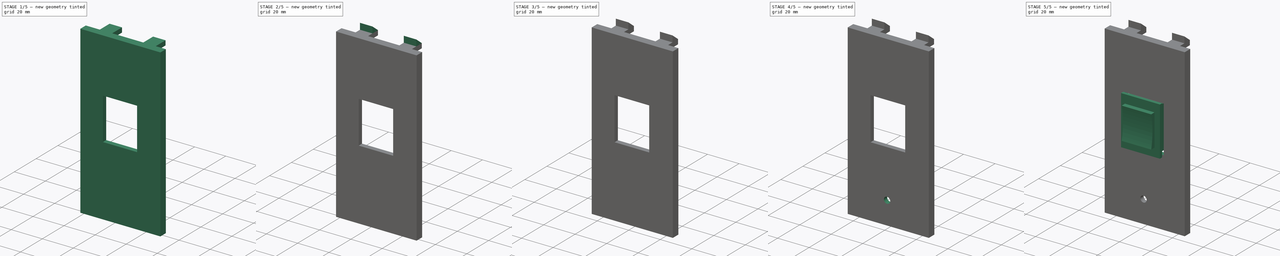
[diagram: build sequence overview — one tinted view per stage of 5, left to right]
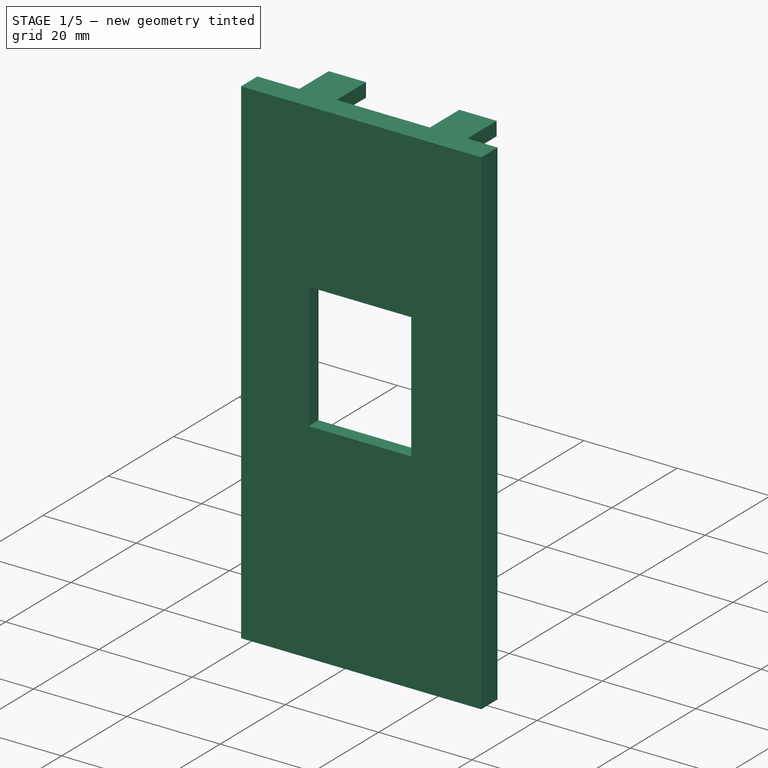
[diagram: stage 1 of 5 — iso view after this stage's code; geometry added in this stage tinted green]
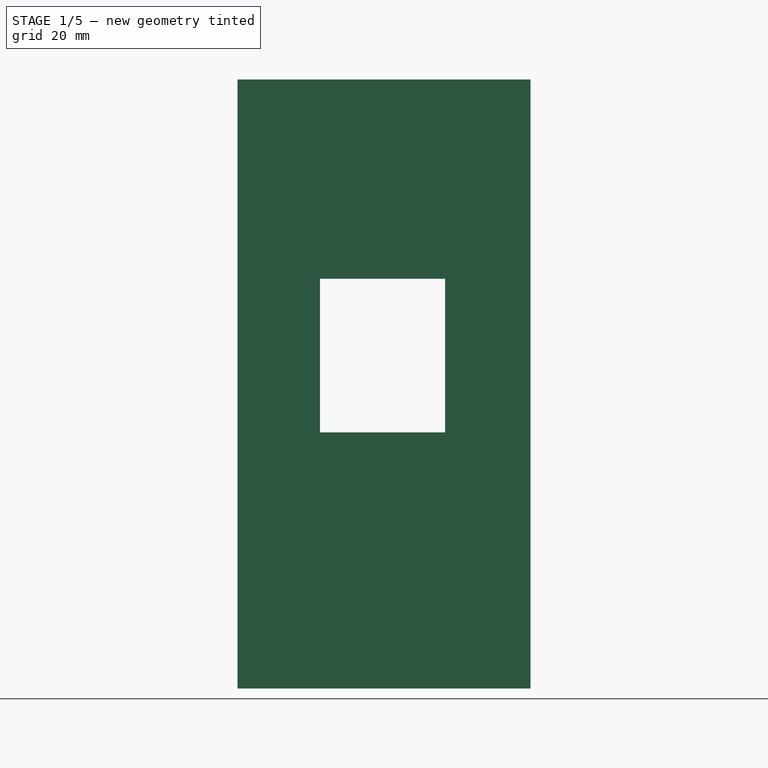
[diagram: stage 1 of 5 — front view after this stage's code; geometry added in this stage tinted green]
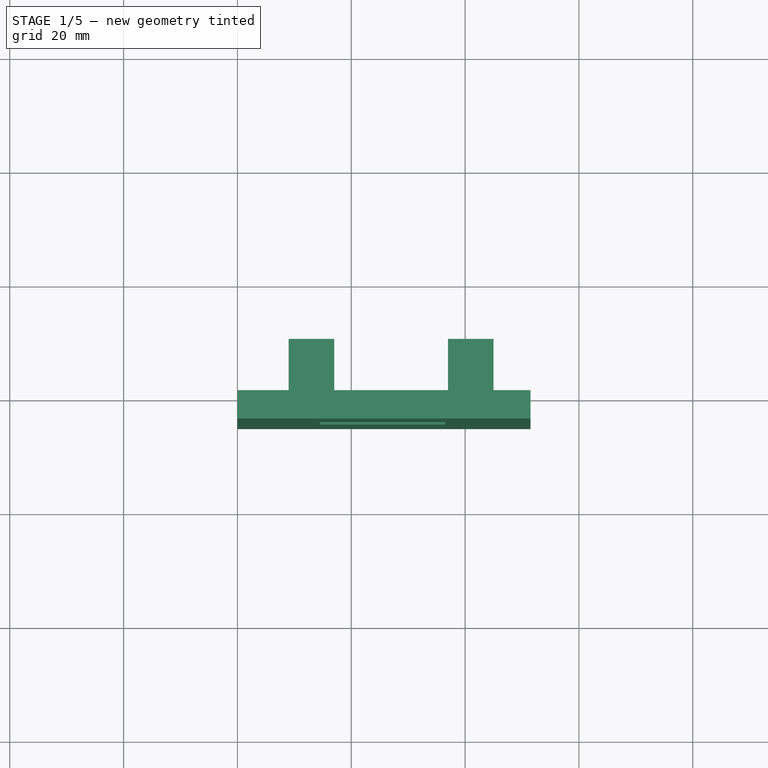
[diagram: stage 1 of 5 — top view after this stage's code; geometry added in this stage tinted green]
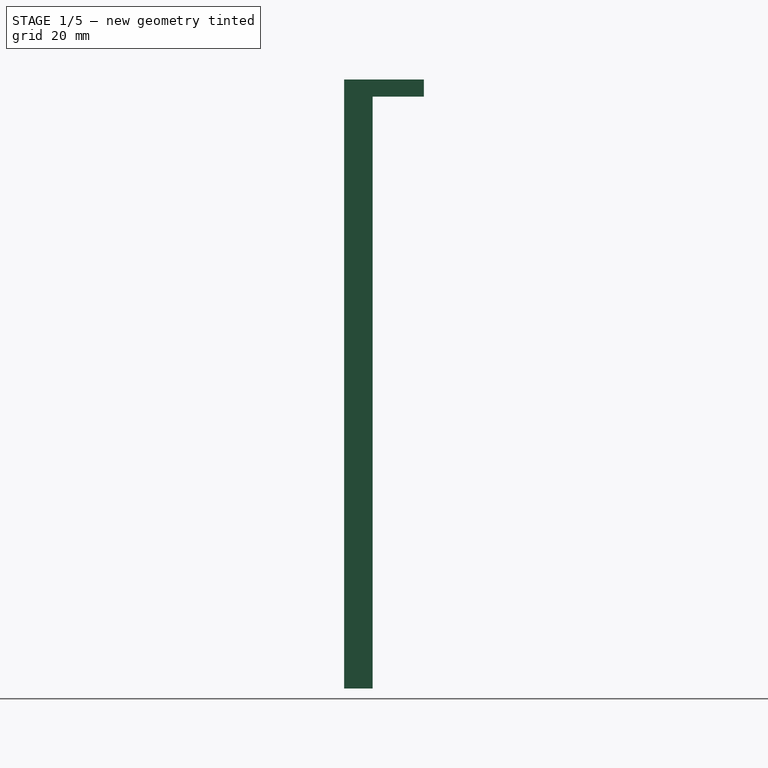
[diagram: stage 1 of 5 — right view after this stage's code; geometry added in this stage tinted green]
FCSTD DOCUMENT  (FreeCAD 0.14R2935 (Git))
Label: cubre-modulos
License: CC-BY 3.0
LicenseURL: http://creativecommons.org/licenses/by/3.0/
objects: Sketcher::SketchObject×12, PartDesign::Pad×10, PartDesign::Pocket×3, Part::Chamfer×1, Part::FeaturePython×1
note: 40 computed .brp shape members not serialized (recipe doc carries the construction recipe); baked Part::Feature solids carry a one-line shape summary decoded from their .brp

FEATURE [Sketcher::SketchObject] Sketch
  Placement = pos=(0,0,0) rot=(1,0,0;1.5708rad)
  sketch-geometry (8):
    g0: LineSegment StartX=0 StartY=107 StartZ=0 EndX=51.5 EndY=107 EndZ=0
    g1: LineSegment StartX=51.5 StartY=107 StartZ=0 EndX=51.5 EndY=0 EndZ=0
    g2: LineSegment StartX=51.5 StartY=0 StartZ=0 EndX=0 EndY=0 EndZ=0
    g3: LineSegment StartX=0 StartY=0 StartZ=0 EndX=0 EndY=107 EndZ=0
    g4: LineSegment StartX=14.5 StartY=72 StartZ=0 EndX=36.5 EndY=72 EndZ=0
    g5: LineSegment StartX=36.5 StartY=72 StartZ=0 EndX=36.5 EndY=45 EndZ=0
    g6: LineSegment StartX=36.5 StartY=45 StartZ=0 EndX=14.5 EndY=45 EndZ=0
    g7: LineSegment StartX=14.5 StartY=45 StartZ=0 EndX=14.5 EndY=72 EndZ=0
  constraints (23):
    c: Coincident(g0,g1)
    c: Coincident(g1,g2)
    c: Coincident(g2,g3)
    c: Coincident(g3,g0)
    c: Horizontal(g0)
    c: Horizontal(g2)
    c: Vertical(g1)
    c: Vertical(g3)
    c: DistanceY(g1) = -107
    c: DistanceX(g0) = 51.5
    c: Coincident(g4,g5)
    c: Coincident(g5,g6)
    c: Coincident(g6,g7)
    c: Coincident(g7,g4)
    c: Horizontal(g4)
    c: Horizontal(g6)
    c: Vertical(g5)
    c: Vertical(g7)
    c: DistanceX(g4) = 22
    c: DistanceY(g7) = 27
    c: Coincident(g2,g-1)
    c: Distance(g5,g1) = 15
    c: Distance(g5,g2) = 45
FEATURE [PartDesign::Pad] Pad
  Length = 5
  Length2 = 100
  Placement = pos=(0,0,0) rot=(1,0,0;1.5708rad)
  Sketch = -> Sketch
  Type = 0
FEATURE [Sketcher::SketchObject] Sketch001
  ExternalGeometry = -> [Pad]
  Placement = pos=(0,0,0) rot=(-1,0,0;1.5708rad)
  Support = -> Pad [Face9]
  sketch-geometry (4):
    g0: LineSegment StartX=4 StartY=-4.5 StartZ=0 EndX=47.5 EndY=-4.5 EndZ=0
    g1: LineSegment StartX=47.5 StartY=-4.5 StartZ=0 EndX=47.5 EndY=-104.5 EndZ=0
    g2: LineSegment StartX=47.5 StartY=-104.5 StartZ=0 EndX=4 EndY=-104.5 EndZ=0
    g3: LineSegment StartX=4 StartY=-104.5 StartZ=0 EndX=4 EndY=-4.5 EndZ=0
  constraints (12):
    c: Coincident(g0,g1)
    c: Coincident(g1,g2)
    c: Coincident(g2,g3)
    c: Coincident(g3,g0)
    c: Horizontal(g0)
    c: Horizontal(g2)
    c: Vertical(g1)
    c: Vertical(g3)
    c: DistanceY(g1) = -100
    c: Distance(g1,g-3) = 2.5
    c: DistanceX(g-2,g0) = 4
    c: Distance(g0,g-4) = 4
FEATURE [PartDesign::Pocket] Pocket
  Length = 2
  Placement = pos=(0,0,0) rot=(1,0,0;1.5708rad)
  Sketch = -> Sketch001
  Type = 0
FEATURE [Sketcher::SketchObject] Sketch002
  Placement = pos=(0,0,107) rot=(0,0,1;3.14159rad)
  Support = -> Pocket [Face1]
  sketch-geometry (8):
    g0: LineSegment StartX=-9 StartY=-9 StartZ=0 EndX=-17 EndY=-9 EndZ=0
    g1: LineSegment StartX=-17 StartY=-9 StartZ=0 EndX=-17 EndY=0 EndZ=0
    g2: LineSegment StartX=-17 StartY=0 StartZ=0 EndX=-9 EndY=0 EndZ=0
    g3: LineSegment StartX=-9 StartY=0 StartZ=0 EndX=-9 EndY=-9 EndZ=0
    g4: LineSegment StartX=-37 StartY=-9 StartZ=0 EndX=-45 EndY=-9 EndZ=0
    g5: LineSegment StartX=-45 StartY=-9 StartZ=0 EndX=-45 EndY=0 EndZ=0
    g6: LineSegment StartX=-45 StartY=0 StartZ=0 EndX=-37 EndY=0 EndZ=0
    g7: LineSegment StartX=-37 StartY=0 StartZ=0 EndX=-37 EndY=-9 EndZ=0
  constraints (27):
    c: Coincident(g0,g1)
    c: Coincident(g1,g2)
    c: Coincident(g2,g3)
    c: Coincident(g3,g0)
    c: Horizontal(g0)
    c: Horizontal(g2)
    c: Vertical(g1)
    c: Vertical(g3)
    c: Coincident(g4,g5)
    c: Coincident(g5,g6)
    c: Coincident(g6,g7)
    c: Coincident(g7,g4)
    c: Horizontal(g4)
    c: Horizontal(g6)
    c: Vertical(g5)
    c: Vertical(g7)
    c: Equal(g0,g2)
    c: Equal(g2,g6)
    c: Equal(g7,g5)
    c: Equal(g5,g1)
    c: Equal(g1,g3)
    c: DistanceX(g4) = -8
    c: DistanceY(g3) = -9
    c: Distance(g0,g4) = 20
    c: PointOnObject(g2,g-1)
    c: PointOnObject(g6,g-1)
    c: Distance(g-1,g2) = 9
FEATURE [PartDesign::Pad] Pad001
  Length = 3
  Length2 = 100
  Placement = pos=(0,0,0) rot=(1,0,0;1.5708rad)
  Reversed = true
  Sketch = -> Sketch002
  Type = 0
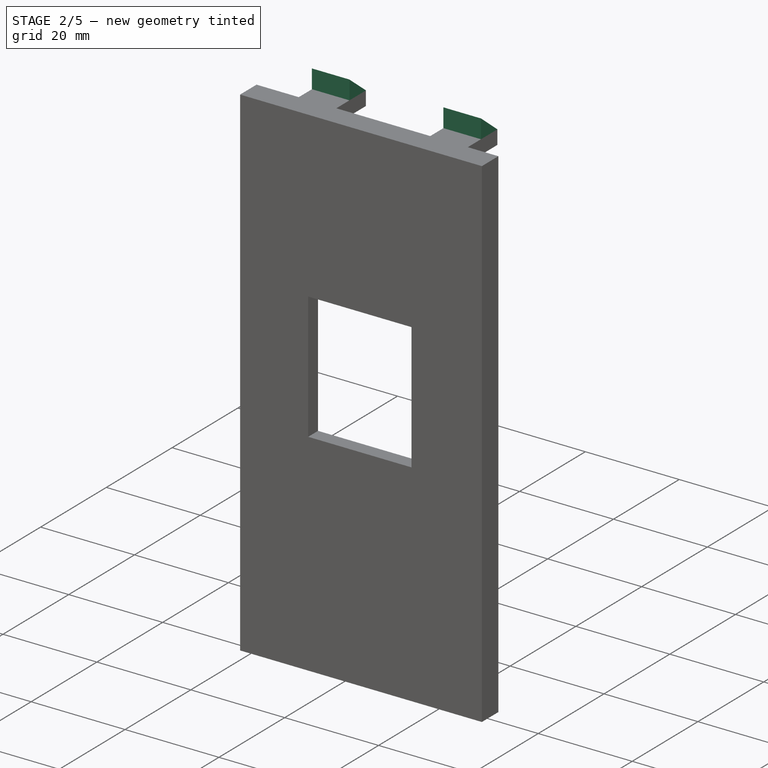
[diagram: stage 2 of 5 — iso view after this stage's code; geometry added in this stage tinted green]
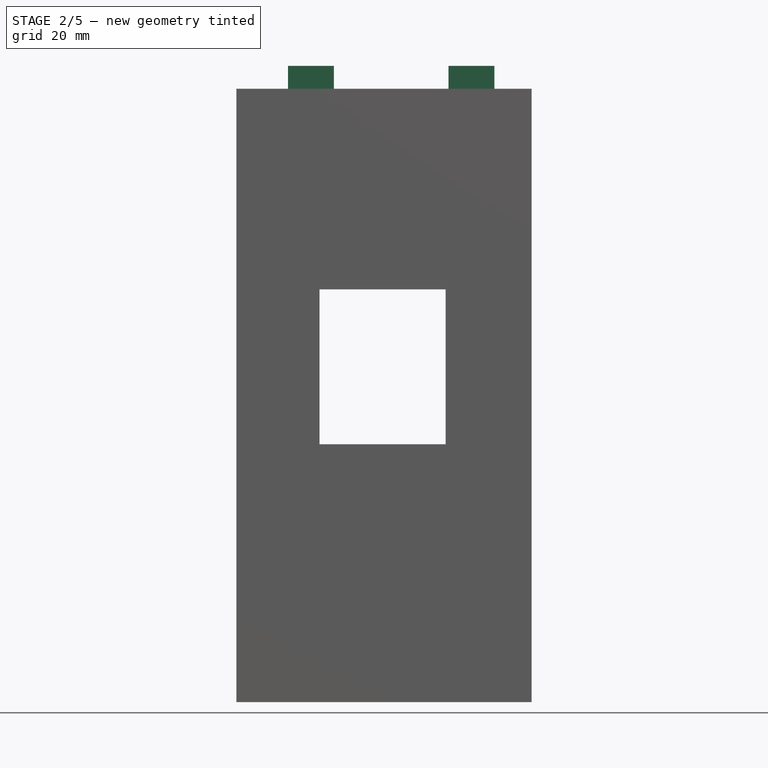
[diagram: stage 2 of 5 — front view after this stage's code; geometry added in this stage tinted green]
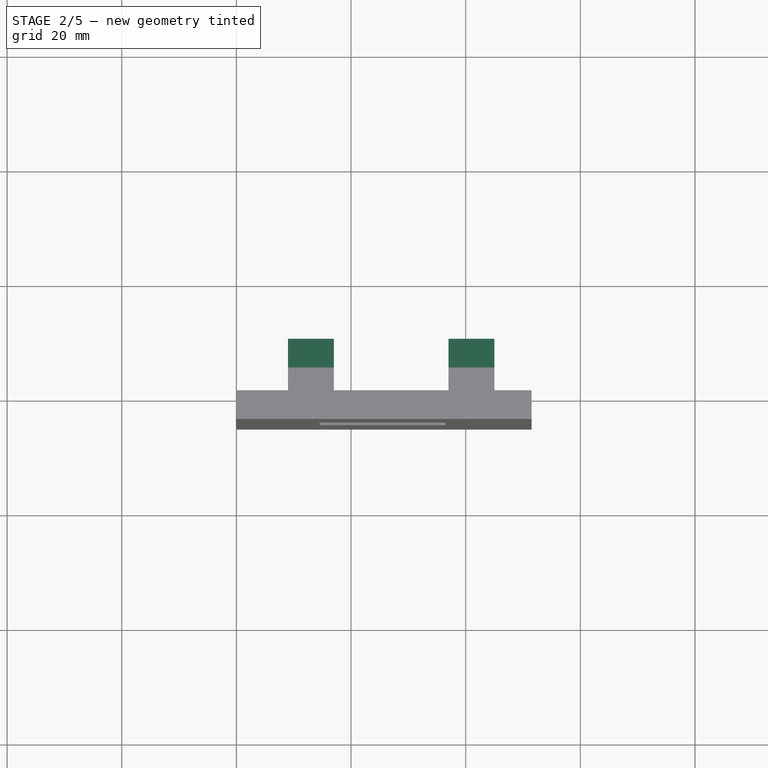
[diagram: stage 2 of 5 — top view after this stage's code; geometry added in this stage tinted green]
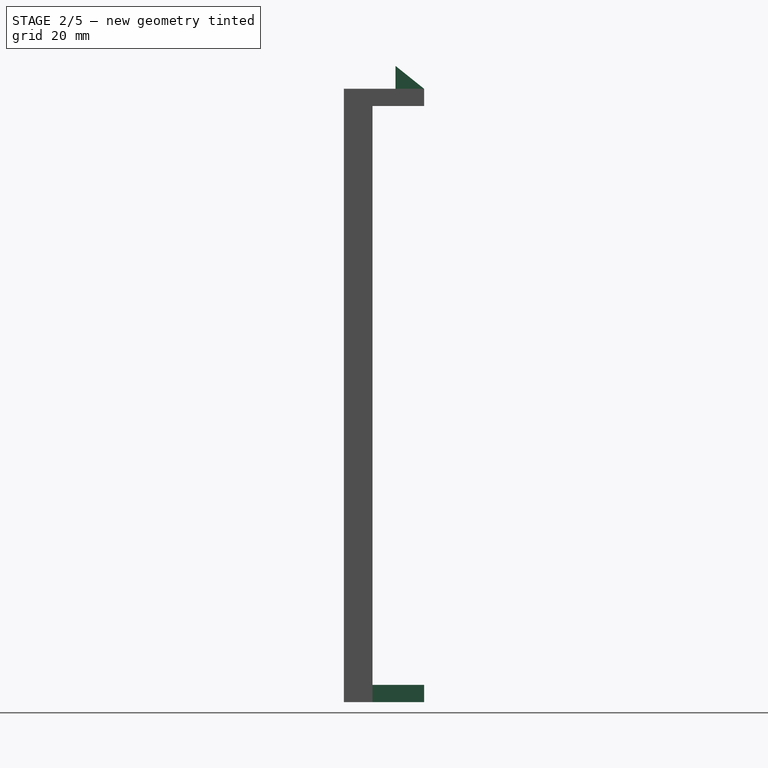
[diagram: stage 2 of 5 — right view after this stage's code; geometry added in this stage tinted green]
FEATURE [Sketcher::SketchObject] Sketch003
  ExternalGeometry = -> [Pad001]
  Placement = pos=(45,0,0) rot=(0.707107,0,0.707107;3.14159rad)
  Support = -> Pad001 [Face15]
  sketch-geometry (3):
    g0: LineSegment StartX=107 StartY=-4 StartZ=0 EndX=111 EndY=-4 EndZ=0
    g1: LineSegment StartX=111 StartY=-4 StartZ=0 EndX=107 EndY=-9 EndZ=0
    g2: LineSegment StartX=107 StartY=-9 StartZ=0 EndX=107 EndY=-4 EndZ=0
  constraints (8):
    c: Coincident(g0,g1)
    c: Coincident(g1,g2)
    c: Coincident(g0,g2)
    c: Vertical(g2)
    c: Horizontal(g0)
    c: DistanceY(g2) = 5
    c: Coincident(g1,g-3)
    c: DistanceX(g0) = 4
FEATURE [PartDesign::Pad] Pad002
  Length = 8
  Length2 = 100
  Placement = pos=(0,0,0) rot=(1,0,0;1.5708rad)
  Reversed = true
  Sketch = -> Sketch003
  Type = 0
FEATURE [Sketcher::SketchObject] Sketch004
  ExternalGeometry = -> [Pad002]
  Placement = pos=(9,0,0) rot=(0.707107,0,-0.707107;3.14159rad)
  Support = -> Pad002 [Face10]
  sketch-geometry (3):
    g0: LineSegment StartX=-107 StartY=-4 StartZ=0 EndX=-111 EndY=-4 EndZ=0
    g1: LineSegment StartX=-111 StartY=-4 StartZ=0 EndX=-107 EndY=-9 EndZ=0
    g2: LineSegment StartX=-107 StartY=-9 StartZ=0 EndX=-107 EndY=-4 EndZ=0
  constraints (8):
    c: Coincident(g0,g1)
    c: Coincident(g1,g2)
    c: Coincident(g0,g2)
    c: Vertical(g2)
    c: Horizontal(g0)
    c: DistanceY(g2) = 5
    c: DistanceX(g0) = -4
    c: Coincident(g1,g-3)
FEATURE [PartDesign::Pad] Pad003
  Length = 8
  Length2 = 100
  Placement = pos=(0,0,0) rot=(1,0,0;1.5708rad)
  Reversed = true
  Sketch = -> Sketch004
  Type = 0
FEATURE [Sketcher::SketchObject] Sketch005
  Placement = pos=(0,0,0) rot=(1,0,0;3.14159rad)
  Support = -> Pad003 [Face2]
  sketch-geometry (8):
    g0: LineSegment StartX=9 StartY=0 StartZ=0 EndX=17 EndY=0 EndZ=0
    g1: LineSegment StartX=17 StartY=0 StartZ=0 EndX=17 EndY=-9 EndZ=0
    g2: LineSegment StartX=17 StartY=-9 StartZ=0 EndX=9 EndY=-9 EndZ=0
    g3: LineSegment StartX=9 StartY=-9 StartZ=0 EndX=9 EndY=0 EndZ=0
    g4: LineSegment StartX=37 StartY=0 StartZ=0 EndX=45 EndY=0 EndZ=0
    g5: LineSegment StartX=45 StartY=0 StartZ=0 EndX=45 EndY=-9 EndZ=0
    g6: LineSegment StartX=45 StartY=-9 StartZ=0 EndX=37 EndY=-9 EndZ=0
    g7: LineSegment StartX=37 StartY=-9 StartZ=0 EndX=37 EndY=0 EndZ=0
  constraints (27):
    c: Coincident(g0,g1)
    c: Coincident(g1,g2)
    c: Coincident(g2,g3)
    c: Coincident(g3,g0)
    c: Horizontal(g0)
    c: Horizontal(g2)
    c: Vertical(g1)
    c: Vertical(g3)
    c: Coincident(g4,g5)
    c: Coincident(g5,g6)
    c: Coincident(g6,g7)
    c: Coincident(g7,g4)
    c: Horizontal(g4)
    c: Horizontal(g6)
    c: Vertical(g5)
    c: Vertical(g7)
    c: DistanceX(g2) = -8
    c: Equal(g2,g6)
    c: Equal(g6,g4)
    c: Equal(g3,g1)
    c: Equal(g1,g7)
    c: Equal(g7,g5)
    c: DistanceY(g3) = 9
    c: Distance(g1,g6) = 20
    c: PointOnObject(g0,g-1)
    c: PointOnObject(g4,g-1)
    c: Distance(g-1,g0) = 9
FEATURE [PartDesign::Pad] Pad004
  Length = 3
  Length2 = 100
  Placement = pos=(0,0,0) rot=(1,0,0;1.5708rad)
  Reversed = true
  Sketch = -> Sketch005
  Type = 0
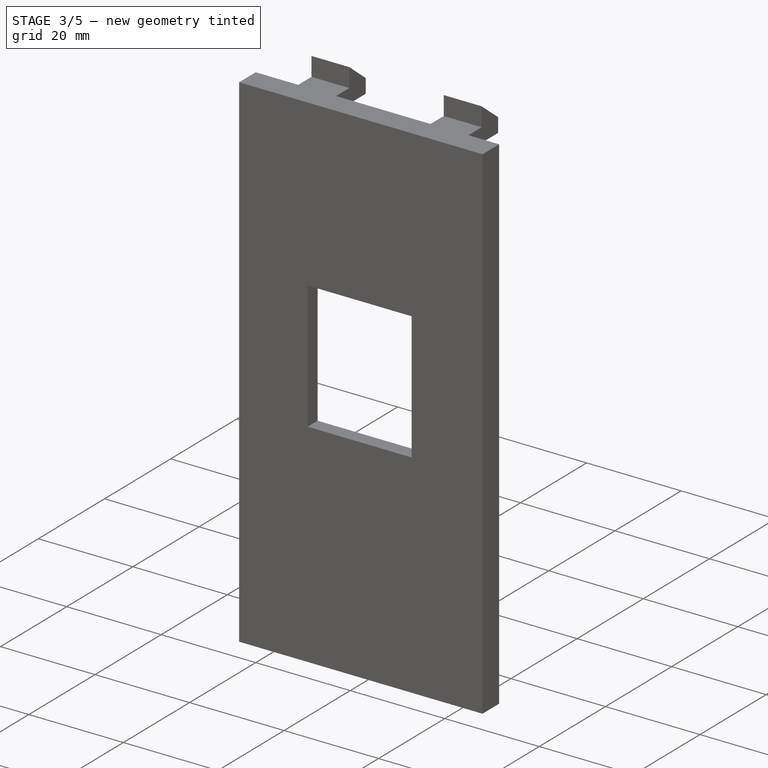
[diagram: stage 3 of 5 — iso view after this stage's code; geometry added in this stage tinted green]
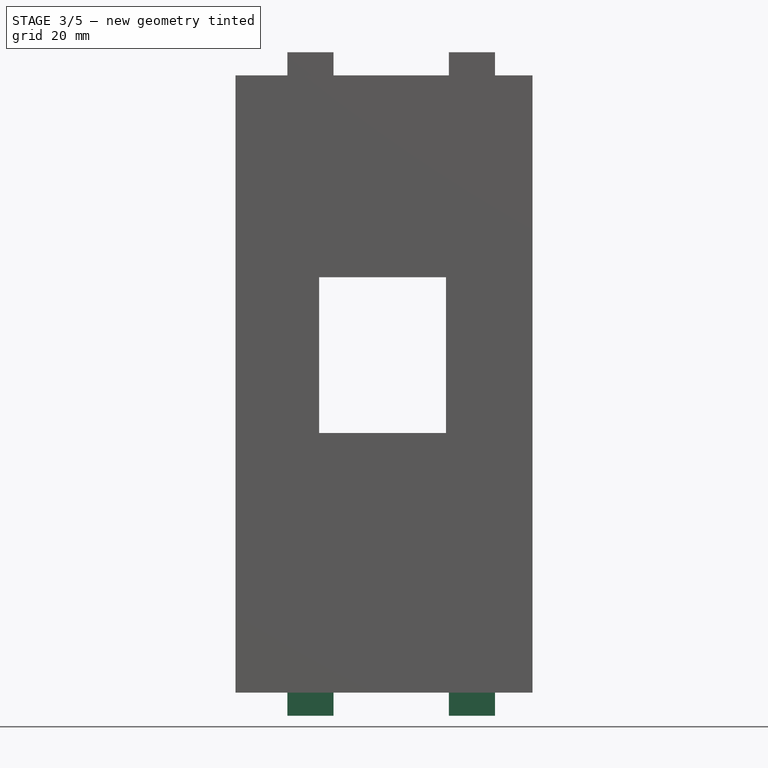
[diagram: stage 3 of 5 — front view after this stage's code; geometry added in this stage tinted green]
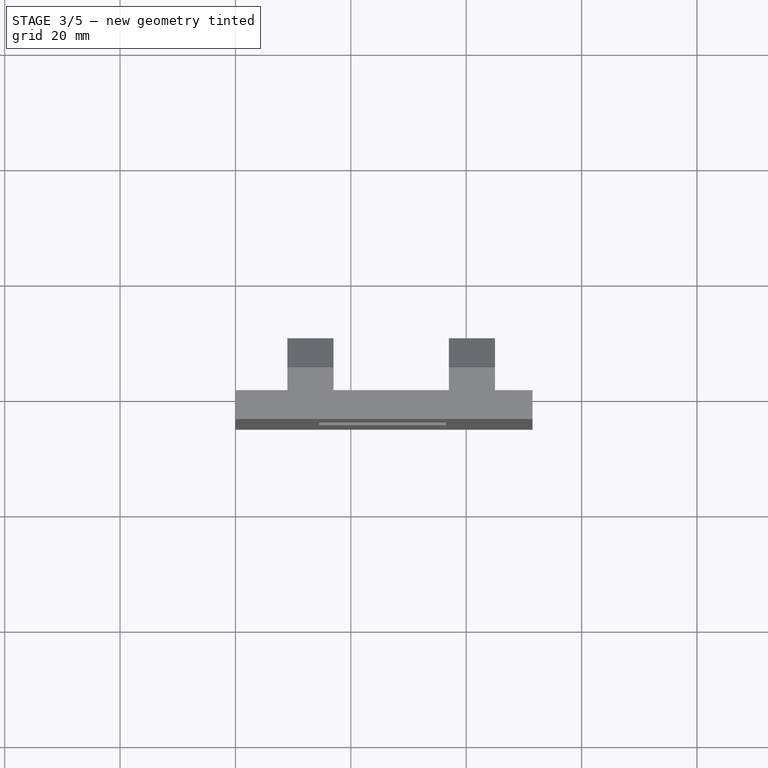
[diagram: stage 3 of 5 — top view after this stage's code; geometry added in this stage tinted green]
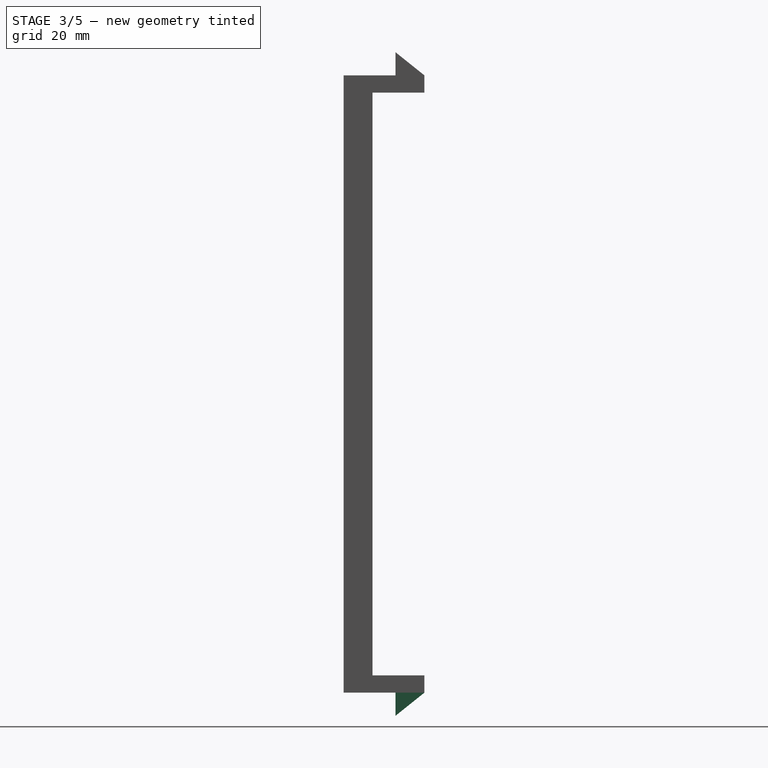
[diagram: stage 3 of 5 — right view after this stage's code; geometry added in this stage tinted green]
FEATURE [Sketcher::SketchObject] Sketch006
  ExternalGeometry = -> [Pad004]
  Placement = pos=(45,0,0) rot=(0.707107,0,0.707107;3.14159rad)
  Support = -> Pad004 [Face18]
  sketch-geometry (3):
    g0: LineSegment StartX=107 StartY=-4 StartZ=0 EndX=111 EndY=-4 EndZ=0
    g1: LineSegment StartX=111 StartY=-4 StartZ=0 EndX=107 EndY=-9 EndZ=0
    g2: LineSegment StartX=107 StartY=-9 StartZ=0 EndX=107 EndY=-4 EndZ=0
  constraints (8):
    c: Coincident(g0,g1)
    c: Coincident(g1,g2)
    c: Coincident(g2,g0)
    c: Horizontal(g0)
    c: Vertical(g2)
    c: DistanceY(g2) = 5
    c: DistanceX(g0) = 4
    c: Coincident(g1,g-3)
FEATURE [PartDesign::Pad] Pad005
  Length = 8
  Length2 = 100
  Placement = pos=(0,0,0) rot=(1,0,0;1.5708rad)
  Reversed = true
  Sketch = -> Sketch006
  Type = 0
FEATURE [Sketcher::SketchObject] Sketch007
  ExternalGeometry = -> [Pad005]
  Placement = pos=(45,0,0) rot=(0.707107,0,0.707107;3.14159rad)
  Support = -> Pad005 [Face18]
  sketch-geometry (3):
    g0: LineSegment StartX=0 StartY=-4 StartZ=0 EndX=-4 EndY=-4 EndZ=0
    g1: LineSegment StartX=-4 StartY=-4 StartZ=0 EndX=0 EndY=-9 EndZ=0
    g2: LineSegment StartX=0 StartY=-9 StartZ=0 EndX=0 EndY=-4 EndZ=0
  constraints (8):
    c: Coincident(g0,g1)
    c: Coincident(g1,g2)
    c: Coincident(g2,g0)
    c: Horizontal(g0)
    c: Vertical(g2)
    c: DistanceX(g0) = -4
    c: DistanceY(g2) = 5
    c: Coincident(g1,g-3)
FEATURE [PartDesign::Pad] Pad006
  Length = 8
  Length2 = 100
  Placement = pos=(0,0,0) rot=(1,0,0;1.5708rad)
  Reversed = true
  Sketch = -> Sketch007
  Type = 0
FEATURE [Sketcher::SketchObject] Sketch008
  ExternalGeometry = -> [Pad006]
  Placement = pos=(9,0,0) rot=(0.707107,0,-0.707107;3.14159rad)
  Support = -> Pad006 [Face23]
  sketch-geometry (3):
    g0: LineSegment StartX=0 StartY=-4 StartZ=0 EndX=4 EndY=-4 EndZ=0
    g1: LineSegment StartX=4 StartY=-4 StartZ=0 EndX=0 EndY=-9 EndZ=0
    g2: LineSegment StartX=0 StartY=-9 StartZ=0 EndX=0 EndY=-4 EndZ=0
  constraints (8):
    c: Coincident(g0,g1)
    c: Coincident(g1,g2)
    c: Coincident(g2,g0)
    c: Horizontal(g0)
    c: Vertical(g2)
    c: DistanceY(g2) = 5
    c: DistanceX(g0) = 4
    c: Coincident(g1,g-3)
FEATURE [PartDesign::Pad] Pad007
  Length = 8
  Length2 = 100
  Placement = pos=(0,0,0) rot=(1,0,0;1.5708rad)
  Reversed = true
  Sketch = -> Sketch008
  Type = 0
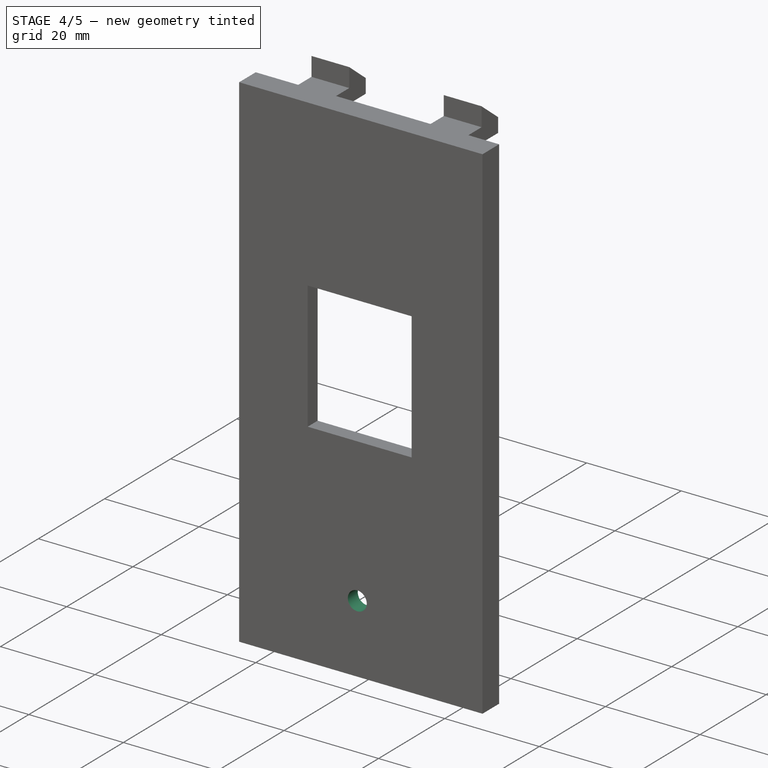
[diagram: stage 4 of 5 — iso view after this stage's code; geometry added in this stage tinted green]
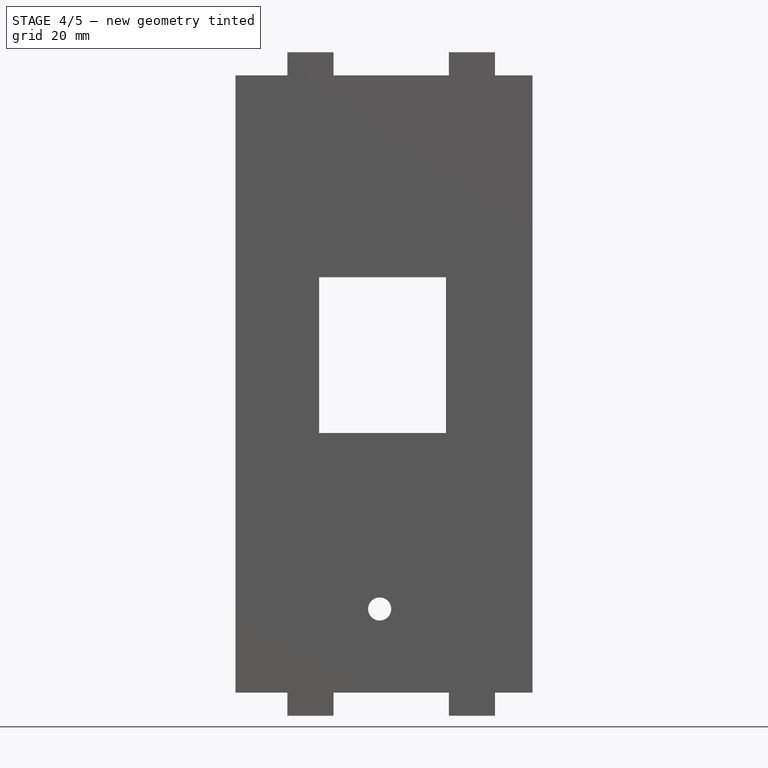
[diagram: stage 4 of 5 — front view after this stage's code; geometry added in this stage tinted green]
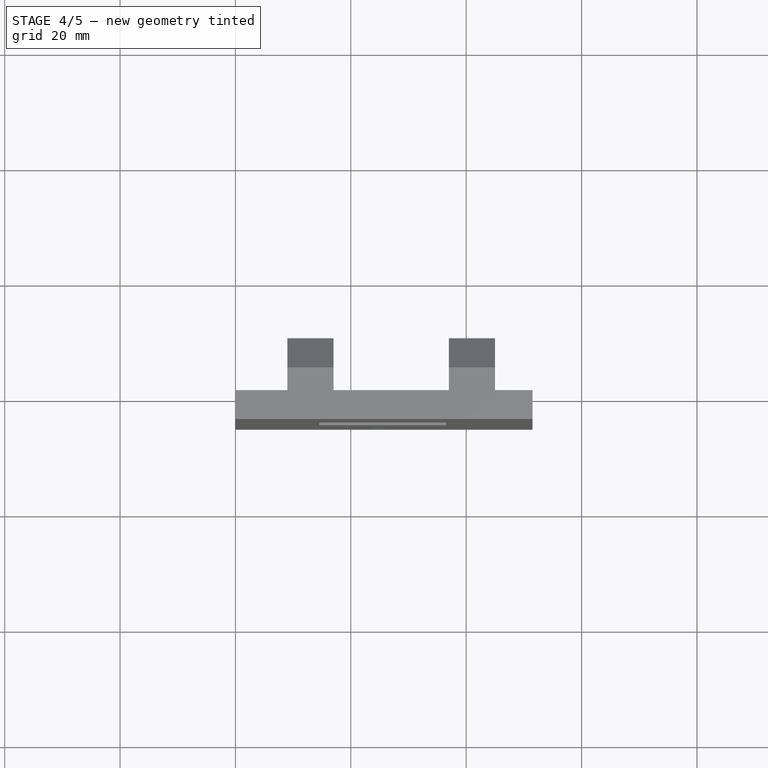
[diagram: stage 4 of 5 — top view after this stage's code; geometry added in this stage tinted green]
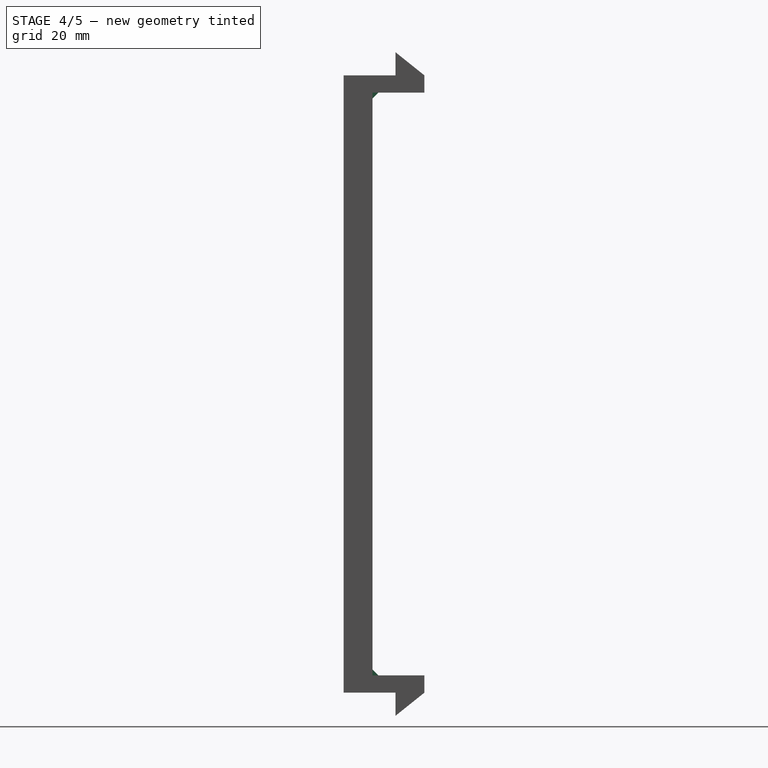
[diagram: stage 4 of 5 — right view after this stage's code; geometry added in this stage tinted green]
FEATURE [Sketcher::SketchObject] Sketch009
  ExternalGeometry = -> [Pad007]
  Placement = pos=(0,-2,0) rot=(-1,0,0;1.5708rad)
  Support = -> Pad007 [Face38]
  sketch-geometry (4):
    g0: LineSegment StartX=4 StartY=-102.9 StartZ=0 EndX=47.5 EndY=-102.9 EndZ=0
    g1: LineSegment StartX=47.5 StartY=-102.9 StartZ=0 EndX=47.5 EndY=-104.5 EndZ=0
    g2: LineSegment StartX=47.5 StartY=-104.5 StartZ=0 EndX=4 EndY=-104.5 EndZ=0
    g3: LineSegment StartX=4 StartY=-104.5 StartZ=0 EndX=4 EndY=-102.9 EndZ=0
  constraints (12):
    c: Coincident(g0,g1)
    c: Coincident(g1,g2)
    c: Coincident(g2,g3)
    c: Coincident(g3,g0)
    c: Horizontal(g0)
    c: Horizontal(g2)
    c: Vertical(g1)
    c: Vertical(g3)
    c: DistanceY(g3) = 1.6
    c: PointOnObject(g1,g-4)
    c: PointOnObject(g2,g-3)
    c: Coincident(g2,g-6)
FEATURE [PartDesign::Pad] Pad008
  Length = 2
  Length2 = 100
  Placement = pos=(0,0,0) rot=(1,0,0;1.5708rad)
  Sketch = -> Sketch009
  Type = 0
FEATURE [Part::Chamfer] Chamfer
  Base = -> Pad008
  Edges = 4 edges r=1: [Edge23,Edge30,Edge61,Edge64]
FEATURE [Sketcher::SketchObject] Sketch010
  ExternalGeometry = -> [Chamfer]
  Placement = pos=(0,-2,0) rot=(0,0.707107,0.707107;3.14159rad)
  Support = -> Chamfer [Face39]
  sketch-geometry (1):
    g0: Circle CenterX=-25 CenterY=14.5 CenterZ=0 NormalX=0 NormalY=0 NormalZ=1 Radius=2
  constraints (3):
    c: Radius(g0) = 2
    c: Distance(g0,g-5) = 21
    c: Distance(g0,g-4) = 10
FEATURE [PartDesign::Pocket] Pocket001
  Length = 5
  Sketch = -> Sketch010
  Type = 0
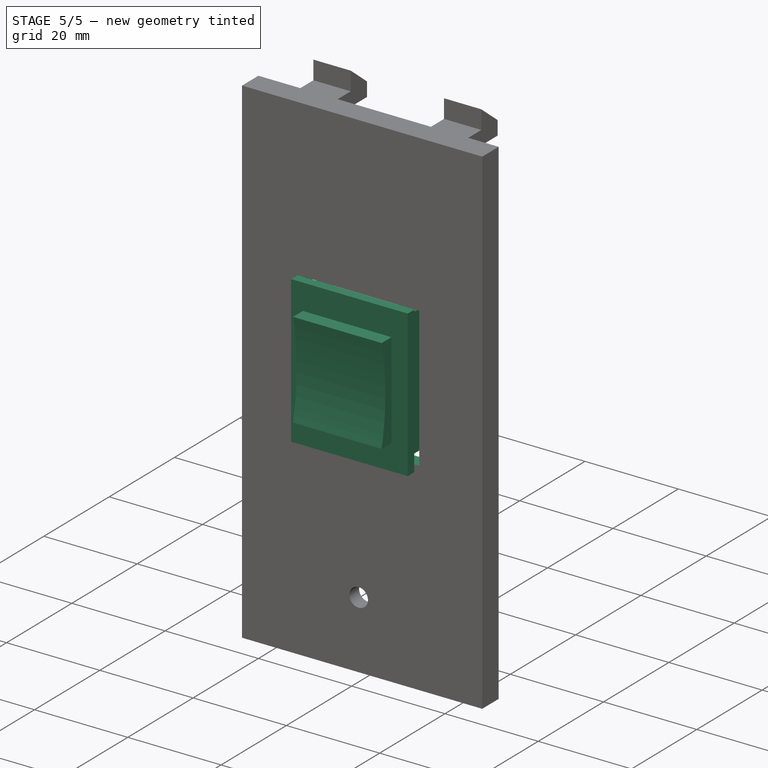
[diagram: stage 5 of 5 — iso view after this stage's code; geometry added in this stage tinted green]
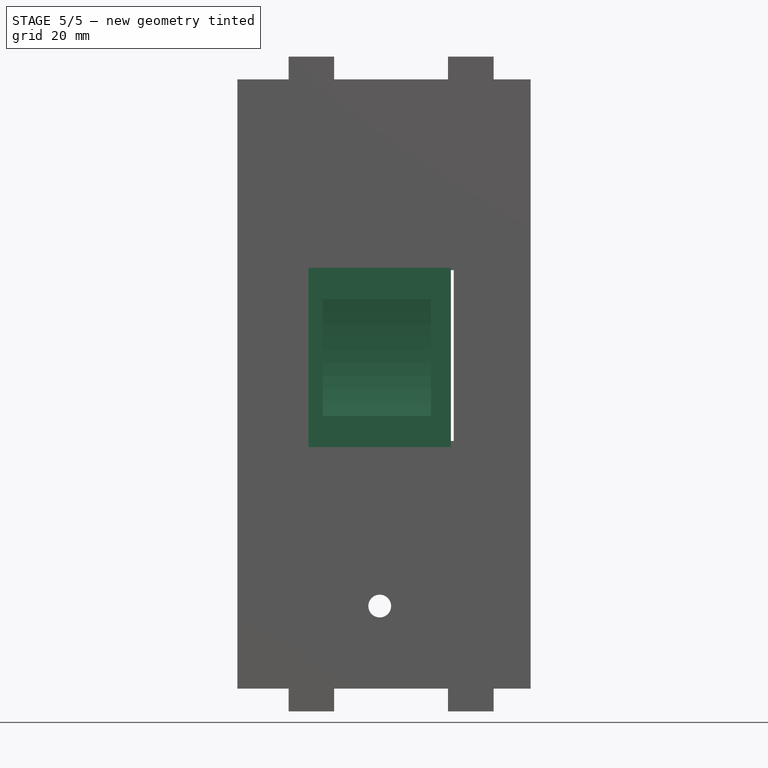
[diagram: stage 5 of 5 — front view after this stage's code; geometry added in this stage tinted green]
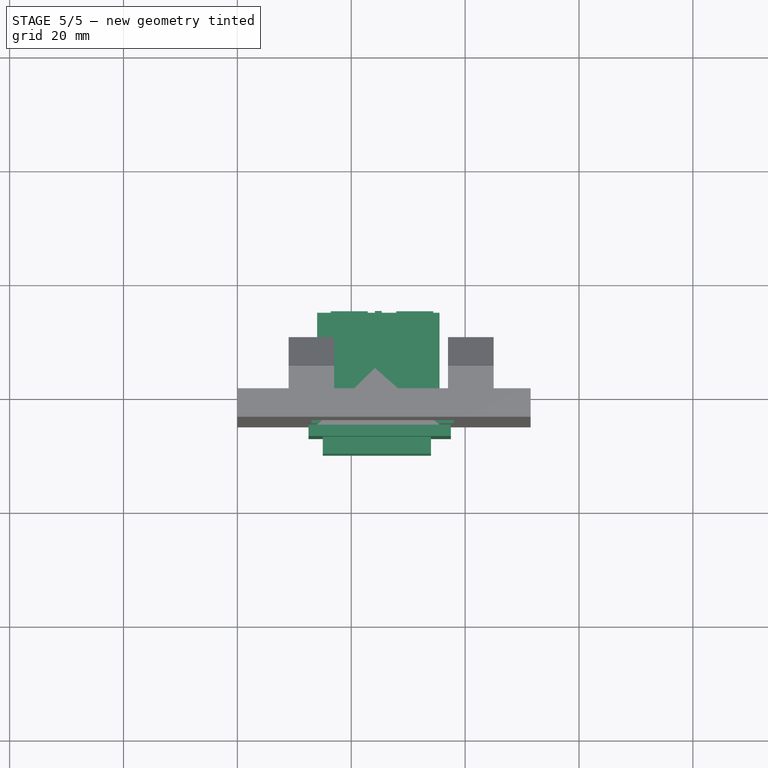
[diagram: stage 5 of 5 — top view after this stage's code; geometry added in this stage tinted green]
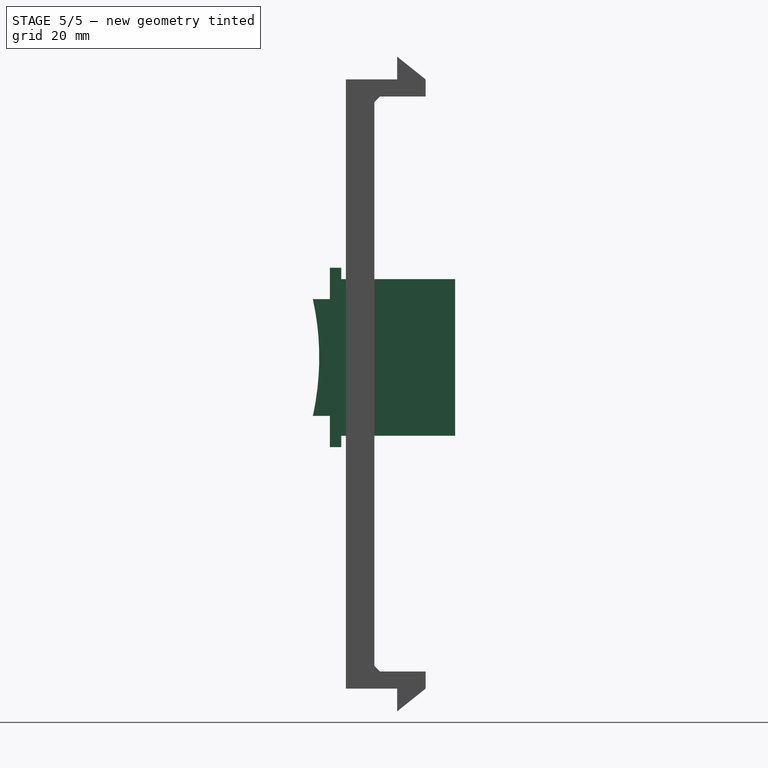
[diagram: stage 5 of 5 — right view after this stage's code; geometry added in this stage tinted green]
FEATURE [PartDesign::Pad] Pad009  label="conmutador"
  Length = 10
  Length2 = 100
  Sketch = -> Sketch003
  Type = 0
FEATURE [Part::FeaturePython] Clone  label="Clone conmutador"  # Draft clone (typed FeaturePython)
  Objects = -> [Pad009]
  Placement = pos=(34,-3,57) rot=(0,0,1;3.14159rad)
  Scale = (1,1,1)
FEATURE [Sketcher::SketchObject] Sketch011
  ExternalGeometry = -> [Pocket001]
  Placement = pos=(0,-5,0) rot=(1,0,0;1.5708rad)
  Support = -> Pocket001 [Face22]
  sketch-geometry (4):
    g0: LineSegment StartX=13 StartY=73.5 StartZ=0 EndX=38 EndY=73.5 EndZ=0
    g1: LineSegment StartX=38 StartY=73.5 StartZ=0 EndX=38 EndY=43.5 EndZ=0
    g2: LineSegment StartX=38 StartY=43.5 StartZ=0 EndX=13 EndY=43.5 EndZ=0
    g3: LineSegment StartX=13 StartY=43.5 StartZ=0 EndX=13 EndY=73.5 EndZ=0
  constraints (12):
    c: Coincident(g0,g1)
    c: Coincident(g1,g2)
    c: Coincident(g2,g3)
    c: Coincident(g3,g0)
    c: Horizontal(g0)
    c: Horizontal(g2)
    c: Vertical(g1)
    c: Vertical(g3)
    c: Distance(g-6,g0) = 1.5
    c: Distance(g-4,g2) = 1.5
    c: Distance(g-6,g1) = 1.5
    c: Distance(g-5,g3) = 1.5
FEATURE [PartDesign::Pocket] Pocket002
  Length = 5
  Sketch = -> Sketch011
  Type = 0
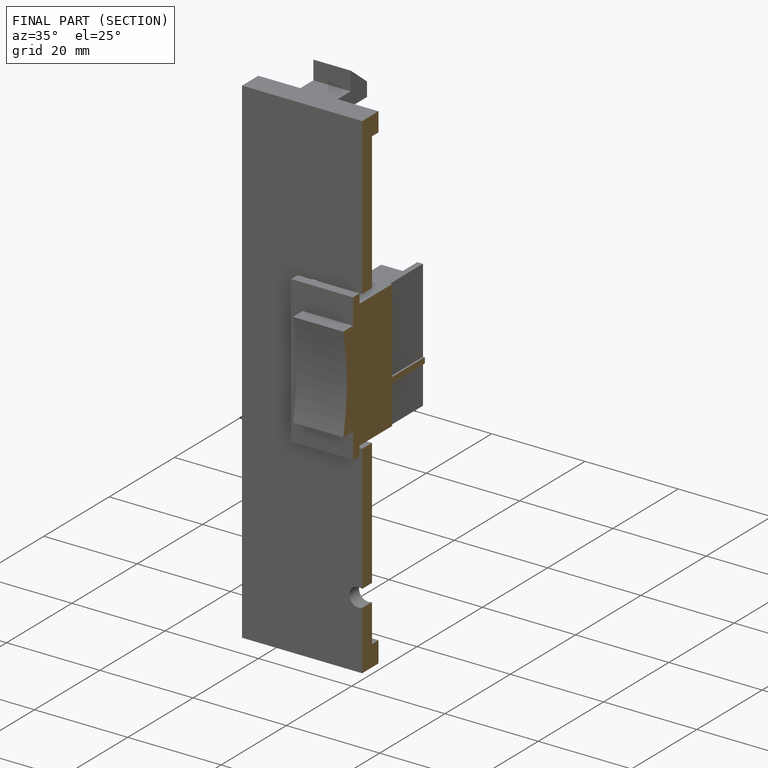
[diagram: finished part — half-section view (interior)]
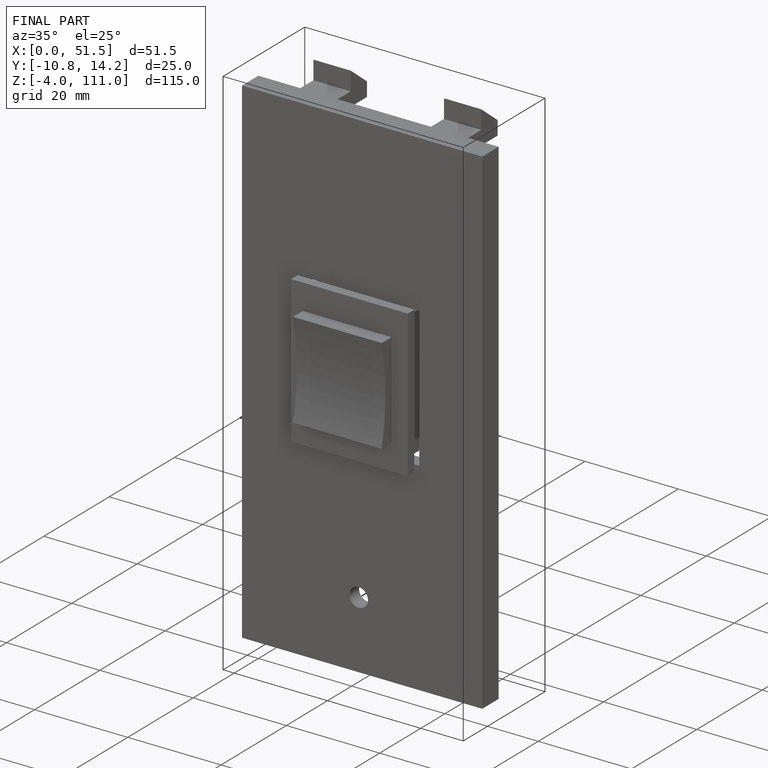
[diagram: finished part — iso view with bounding-box wireframe]
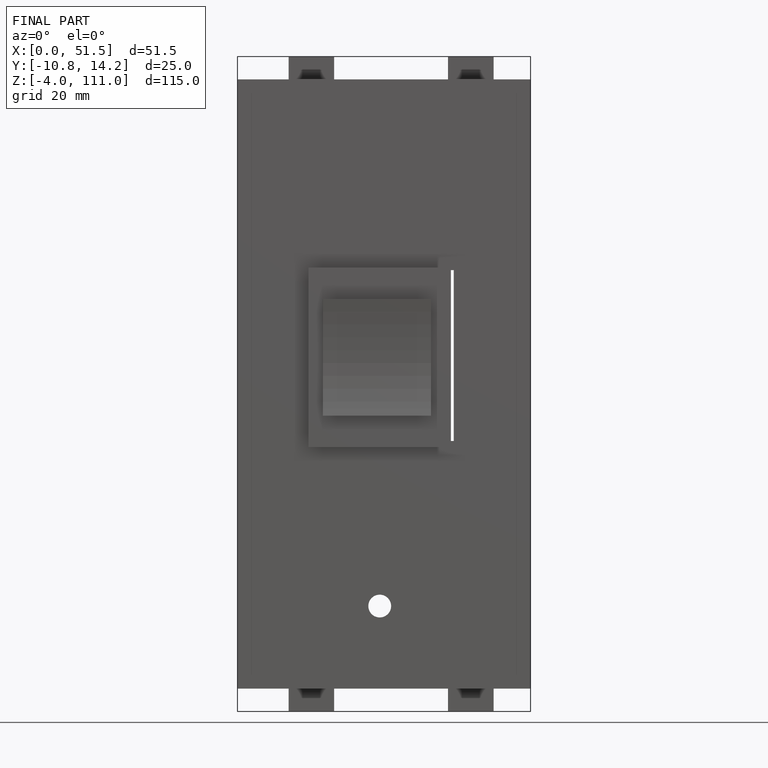
[diagram: finished part — front view with bounding-box wireframe]
